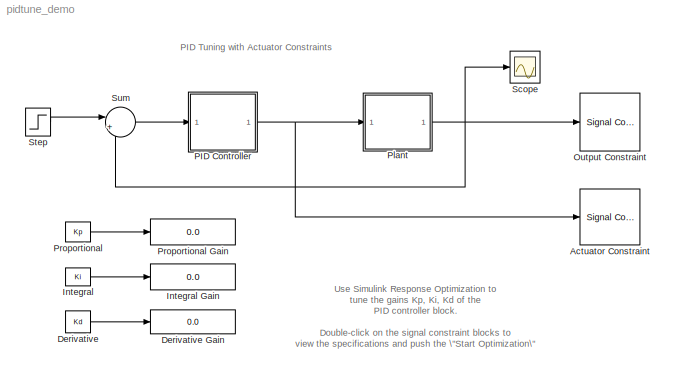
MODEL pidtune_demo
KIND model
CONFIG PreLoadFcn = load pidtune_demo
BLOCK [Reference] Actuator Constraint  REF=srolib/Signal Constraint  (lib defined in mdl_d992e5ea460a)
  DialogPosition = [0.401875 0.274166666666667 0.36125 0.261666666666667]
  LogID = SRO_DataLog_1
  Ports = [1]
  SaveAs = pidtune_optim
  SaveIn = workspace
  ShowPortLabels = on
  SourceBlock = srolib/Signal Constraint
  SourceType = Signal Constraint
BLOCK [Constant] Derivative
  Value = Kd
BLOCK [Display] Derivative Gain
  Decimation = 1
  Ports = [1]
BLOCK [Constant] Integral
  Value = Ki
BLOCK [Display] Integral Gain
  Decimation = 1
  Ports = [1]
BLOCK [Reference] Output Constraint  REF=srolib/Signal Constraint  (lib defined in mdl_d992e5ea460a)
  DialogPosition = [0.058125 0.273333333333333 0.33875 0.26]
  LogID = SRO_DataLog_2
  Ports = [1]
  SaveAs = pidtune_optim
  SaveIn = workspace
  ShowPortLabels = on
  SourceBlock = srolib/Signal Constraint
  SourceType = Signal Constraint
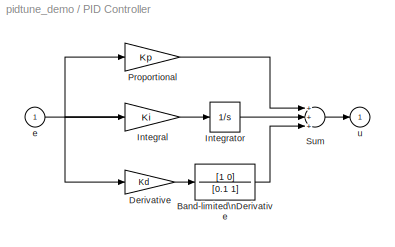
BLOCK [SubSystem] PID Controller
  MinAlgLoopOccurrences = off
  Ports = [1, 1]
  PropExecContextAcrossSSBoundary = on
  RTWSystemCode = Auto
  TreatAsAtomicUnit = off
BLOCK [TransferFcn] PID Controller/Band-limited\nDerivative
  Denominator = [0.1 1]
  Numerator = [1 0]
BLOCK [Gain] PID Controller/Derivative
  Gain = Kd
BLOCK [Gain] PID Controller/Integral
  Gain = Ki
BLOCK [Integrator] PID Controller/Integrator
  Ports = [1, 1]
BLOCK [Gain] PID Controller/Proportional
  Gain = Kp
BLOCK [Sum] PID Controller/Sum
  Inputs = +++
  Ports = [3, 1]
BLOCK [Inport] PID Controller/e
  IconDisplay = Port number
  LatchInput = off
BLOCK [Outport] PID Controller/u
  BusOutputAsStruct = off
  IconDisplay = Port number
  InitialOutput = 0
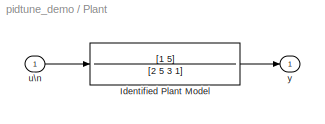
BLOCK [SubSystem] Plant
  MinAlgLoopOccurrences = off
  Ports = [1, 1]
  PropExecContextAcrossSSBoundary = on
  RTWSystemCode = Auto
  TreatAsAtomicUnit = off
BLOCK [TransferFcn] Plant/Identified Plant Model
  Denominator = [2 5 3 1]
  Numerator = [1 5]
BLOCK [Inport] Plant/u\n
  IconDisplay = Port number
  LatchInput = off
BLOCK [Outport] Plant/y
  BusOutputAsStruct = off
  IconDisplay = Port number
  InitialOutput = 0
BLOCK [Constant] Proportional
  Value = Kp
BLOCK [Display] Proportional Gain
  Decimation = 1
  Ports = [1]
BLOCK [Scope] Scope
  DataFormat = StructureWithTime
  NumInputPorts = 1
  Ports = [1]
BLOCK [Step] Step
  SampleTime = 0
  Time = 0.01
BLOCK [Sum] Sum
  IconShape = round
  InputSameDT = off
  Inputs = |+-
  OutDataTypeMode = Inherit via internal rule
  Ports = [2, 1]
ANNOTATION (root): PID Tuning with Actuator Constraints
ANNOTATION (root): Use Simulink Response Optimization to \ntune the gains Kp, Ki, Kd of the \nPID controller block.\n\nDouble-click on the signal constraint blocks to\nview the specifications and push the \"Start Optimization\"\nbutton to optimize the PID gains.
LINE Derivative:1 -> Derivative Gain:1
LINE Integral:1 -> Integral Gain:1
LINE PID Controller/Band-limited\nDerivative:1 -> PID Controller/Sum:3
LINE PID Controller/Derivative:1 -> PID Controller/Band-limited\nDerivative:1
LINE PID Controller/Integral:1 -> PID Controller/Integrator:1
LINE PID Controller/Integrator:1 -> PID Controller/Sum:2
LINE PID Controller/Proportional:1 -> PID Controller/Sum:1
LINE PID Controller/Sum:1 -> PID Controller/u:1
NET PID Controller/e:1 -> PID Controller/Derivative:1, PID Controller/Integral:1, PID Controller/Proportional:1
NET PID Controller:1 -> Actuator Constraint:1, Plant:1
LINE Plant/Identified Plant Model:1 -> Plant/y:1
LINE Plant/u\n:1 -> Plant/Identified Plant Model:1
NET Plant:1 -> Output Constraint:1, Scope:1, Sum:2
LINE Proportional:1 -> Proportional Gain:1
LINE Step:1 -> Sum:1
LINE Sum:1 -> PID Controller:1
note: NET lines group one-source signal fan-out (src -> all destinations, sorted); 1:1 wires keep LINE
